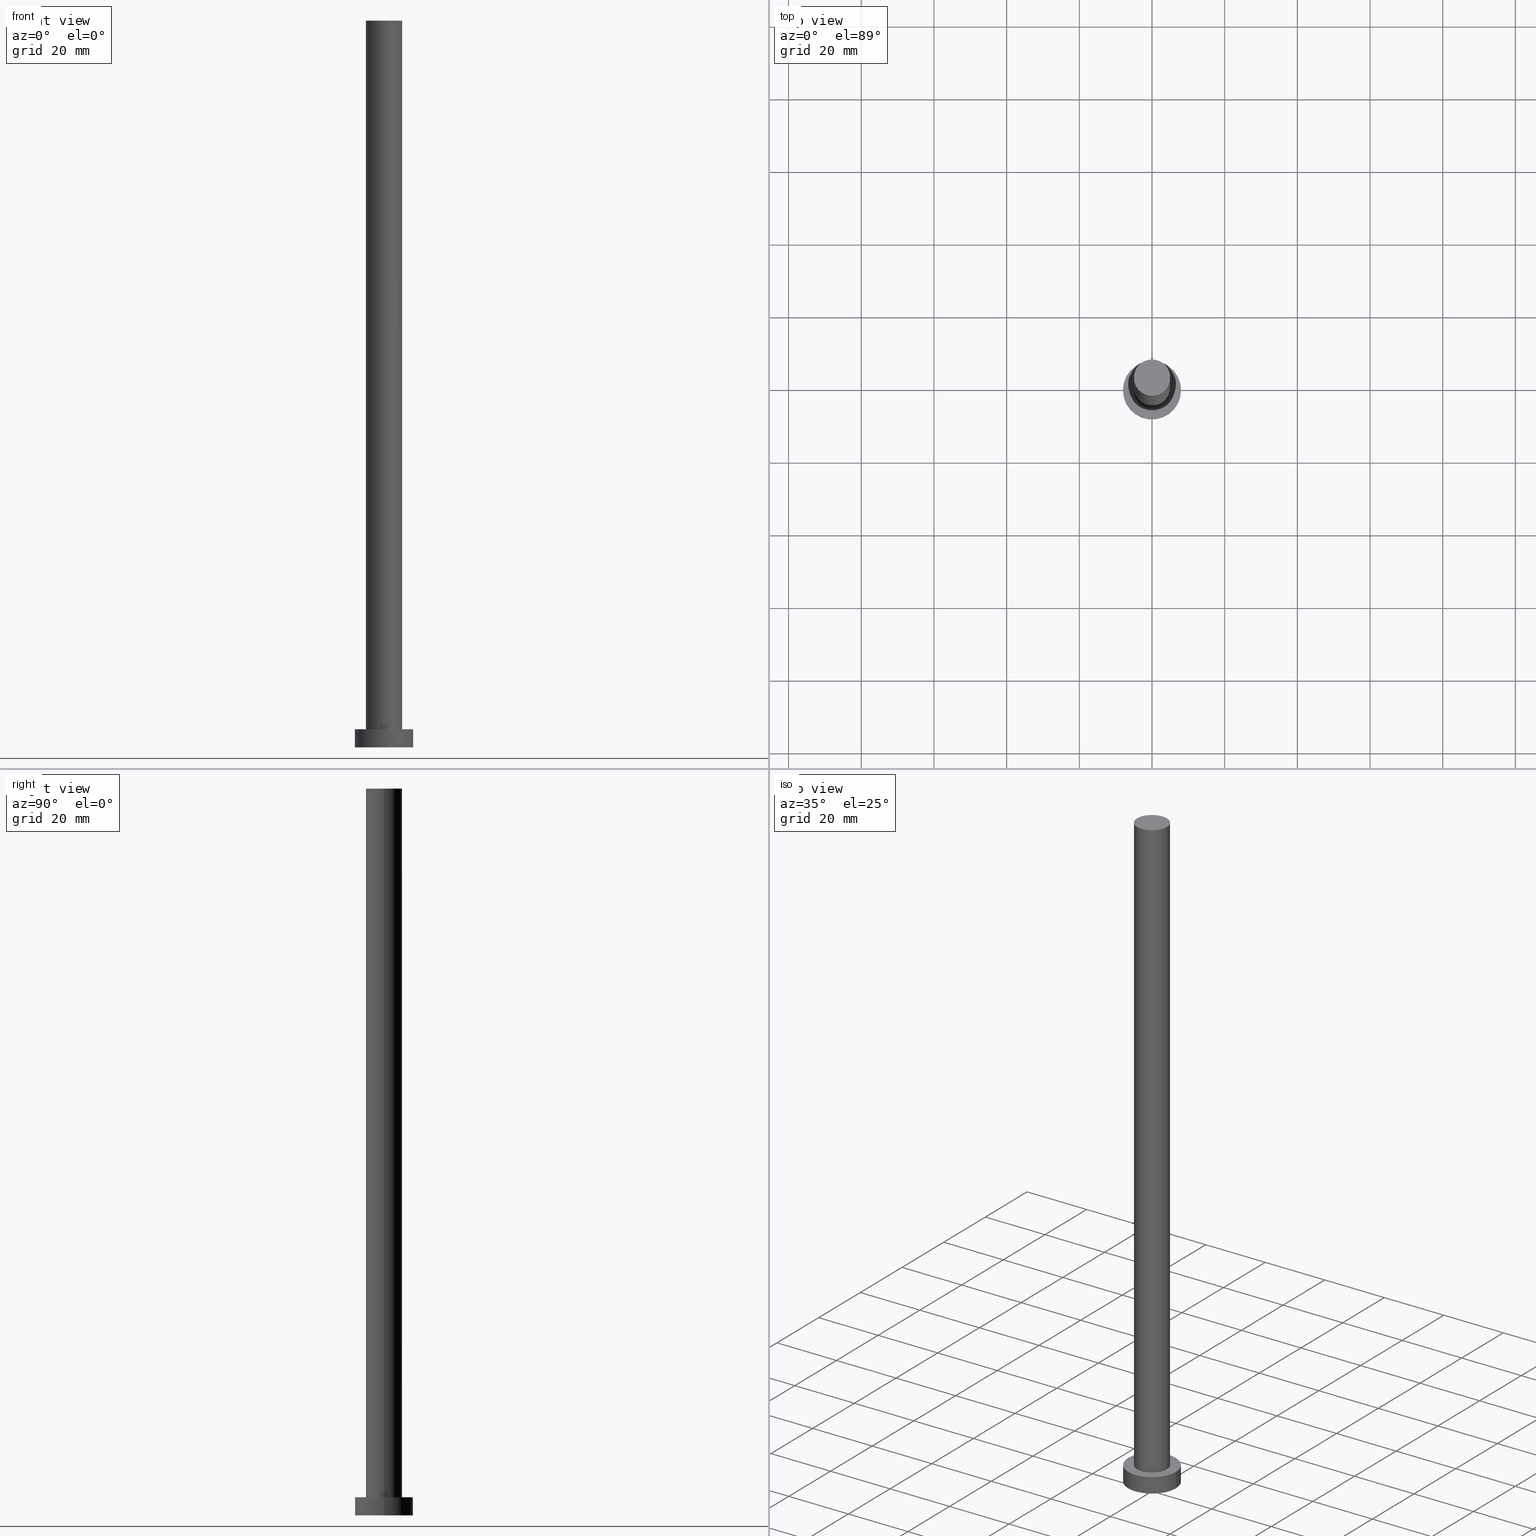
[diagram: canonical four-view strip — front | top / right | iso, engineering-drawing reading convention]
A machine part, canonical four-view strip (front | top / right | iso — engineering-drawing reading convention). The complete STEP part file that produces these views, byte-faithful:
ISO-10303-21;
HEADER;
FILE_DESCRIPTION (( 'STEP AP203' ),
    '1' );
FILE_NAME ('796f.STEP',
    '2023-02-13T09:59:39',
    ( '' ),
    ( '' ),
    'SwSTEP 2.0',
    'SolidWorks 2019',
    '' );
FILE_SCHEMA (( 'CONFIG_CONTROL_DESIGN' ));
ENDSEC;

DATA;
#1 = AXIS2_PLACEMENT_3D ( 'NONE', #19, #166, #184 ) ;
#2 = PLANE ( 'NONE',  #150 ) ;
#3 = AXIS2_PLACEMENT_3D ( 'NONE', #211, #82, #215 ) ;
#4 = CARTESIAN_POINT ( 'NONE',  ( -5.000000000000000888, 0.000000000000000000, 5.000000000000000000 ) ) ;
#5 = CC_DESIGN_DATE_AND_TIME_ASSIGNMENT ( #47, #191, ( #121 ) ) ;
#6 = CARTESIAN_POINT ( 'NONE',  ( 8.000000000000000000, 9.797174393178825657E-16, 5.000000000000000000 ) ) ;
#7 = CARTESIAN_POINT ( 'NONE',  ( 5.000000000000000888, 6.123233995736767268E-16, 200.0000000000000000 ) ) ;
#8 = AXIS2_PLACEMENT_3D ( 'NONE', #188, #28, #247 ) ;
#9 = EDGE_LOOP ( 'NONE', ( #174, #97 ) ) ;
#10 = EDGE_CURVE ( 'NONE', #68, #253, #73, .T. ) ;
#11 = APPROVAL_STATUS ( 'not_yet_approved' ) ;
#12 = APPROVAL_PERSON_ORGANIZATION ( #14, #209, #231 ) ;
#13 = CARTESIAN_POINT ( 'NONE',  ( 8.000000000000000000, 9.797174393178825657E-16, 0.000000000000000000 ) ) ;
#14 = PERSON_AND_ORGANIZATION ( #153, #62 ) ;
#15 = ORIENTED_EDGE ( 'NONE', *, *, #164, .F. ) ;
#16 = ORIENTED_EDGE ( 'NONE', *, *, #239, .F. ) ;
#17 = EDGE_CURVE ( 'NONE', #229, #48, #18, .T. ) ;
#18 = LINE ( 'NONE', #186, #135 ) ;
#19 = CARTESIAN_POINT ( 'NONE',  ( 0.000000000000000000, 0.000000000000000000, 5.000000000000000000 ) ) ;
#20 = AXIS2_PLACEMENT_3D ( 'NONE', #102, #236, #181 ) ;
#21 = CARTESIAN_POINT ( 'NONE',  ( -5.000000000000000888, 0.000000000000000000, 200.0000000000000000 ) ) ;
#22 = PRODUCT_DEFINITION_FORMATION_WITH_SPECIFIED_SOURCE ( 'LIBOVOLN�', '', #130, .NOT_KNOWN. ) ;
#23 = CC_DESIGN_PERSON_AND_ORGANIZATION_ASSIGNMENT ( #245, #205, ( #98 ) ) ;
#24 = DIRECTION ( 'NONE',  ( 0.000000000000000000, 0.000000000000000000, 1.000000000000000000 ) ) ;
#25 = CARTESIAN_POINT ( 'NONE',  ( 0.000000000000000000, 0.000000000000000000, 0.000000000000000000 ) ) ;
#26 = VECTOR ( 'NONE', #210, 1000.000000000000000 ) ;
#27 = MANIFOLD_SOLID_BREP ( 'P�idat vysunut�m3', #242 ) ;
#28 = DIRECTION ( 'NONE',  ( 0.000000000000000000, 0.000000000000000000, 1.000000000000000000 ) ) ;
#29 = CC_DESIGN_PERSON_AND_ORGANIZATION_ASSIGNMENT ( #113, #194, ( #130 ) ) ;
#30 = DIRECTION ( 'NONE',  ( 1.000000000000000000, 0.000000000000000000, 0.000000000000000000 ) ) ;
#31 = CIRCLE ( 'NONE', #69, 8.000000000000000000 ) ;
#32 = CALENDAR_DATE ( 2023, 13, 2 ) ;
#33 = DIRECTION ( 'NONE',  ( 0.000000000000000000, 0.000000000000000000, 1.000000000000000000 ) ) ;
#34 = ORIENTED_EDGE ( 'NONE', *, *, #88, .T. ) ;
#35 = CC_DESIGN_PERSON_AND_ORGANIZATION_ASSIGNMENT ( #227, #156, ( #22 ) ) ;
#36 = DIRECTION ( 'NONE',  ( 0.000000000000000000, 0.000000000000000000, 1.000000000000000000 ) ) ;
#37 = LINE ( 'NONE', #138, #26 ) ;
#38 = DIRECTION ( 'NONE',  ( -0.000000000000000000, -0.000000000000000000, -1.000000000000000000 ) ) ;
#39 = FACE_OUTER_BOUND ( 'NONE', #172, .T. ) ;
#40 = CC_DESIGN_APPROVAL ( #87, ( #22 ) ) ;
#41 = ADVANCED_BREP_SHAPE_REPRESENTATION ( '796f', ( #27, #250 ), #75 ) ;
#42 = CYLINDRICAL_SURFACE ( 'NONE', #3, 8.000000000000000000 ) ;
#43 = CC_DESIGN_DATE_AND_TIME_ASSIGNMENT ( #109, #224, ( #98 ) ) ;
#44 = PERSON_AND_ORGANIZATION ( #153, #62 ) ;
#45 = CC_DESIGN_APPROVAL ( #116, ( #98 ) ) ;
#46 = ORIENTED_EDGE ( 'NONE', *, *, #88, .F. ) ;
#47 = DATE_AND_TIME ( #192, #90 ) ;
#48 = VERTEX_POINT ( 'NONE', #104 ) ;
#49 =( NAMED_UNIT ( * ) PLANE_ANGLE_UNIT ( ) SI_UNIT ( $, .RADIAN. ) );
#50 = CALENDAR_DATE ( 2023, 13, 2 ) ;
#51 = VERTEX_POINT ( 'NONE', #21 ) ;
#52 = CALENDAR_DATE ( 2023, 13, 2 ) ;
#53 = APPLICATION_CONTEXT ( 'configuration controlled 3d designs of mechanical parts and assemblies' ) ;
#54 = EDGE_LOOP ( 'NONE', ( #16, #160, #144, #15 ) ) ;
#55 = COORDINATED_UNIVERSAL_TIME_OFFSET ( 1, 0, .AHEAD. ) ;
#56 = APPLICATION_PROTOCOL_DEFINITION ( 'international standard', 'config_control_design', 1994, #53 ) ;
#57 = EDGE_CURVE ( 'NONE', #51, #70, #117, .T. ) ;
#58 = ORIENTED_EDGE ( 'NONE', *, *, #57, .F. ) ;
#59 = LOCAL_TIME ( 10, 59, 39.00000000000000000, #177 ) ;
#60 = CARTESIAN_POINT ( 'NONE',  ( 0.000000000000000000, 0.000000000000000000, 5.000000000000000000 ) ) ;
#61 = DIRECTION ( 'NONE',  ( -0.000000000000000000, -0.000000000000000000, -1.000000000000000000 ) ) ;
#62 = ORGANIZATION ( 'NEUR�EN�', 'NEUR�EN�', '' ) ;
#63 = FACE_OUTER_BOUND ( 'NONE', #54, .T. ) ;
#64 = FACE_OUTER_BOUND ( 'NONE', #223, .T. ) ;
#65 = FACE_BOUND ( 'NONE', #221, .T. ) ;
#66 = EDGE_CURVE ( 'NONE', #229, #51, #237, .T. ) ;
#67 = CARTESIAN_POINT ( 'NONE',  ( 0.000000000000000000, 0.000000000000000000, 5.000000000000000000 ) ) ;
#68 = VERTEX_POINT ( 'NONE', #137 ) ;
#69 = AXIS2_PLACEMENT_3D ( 'NONE', #25, #36, #198 ) ;
#70 = VERTEX_POINT ( 'NONE', #4 ) ;
#71 = CIRCLE ( 'NONE', #114, 5.000000000000000888 ) ;
#72 = ORIENTED_EDGE ( 'NONE', *, *, #213, .T. ) ;
#73 = CIRCLE ( 'NONE', #105, 8.000000000000000000 ) ;
#74 = APPROVAL_ROLE ( '' ) ;
#75 =( GEOMETRIC_REPRESENTATION_CONTEXT ( 3 ) GLOBAL_UNCERTAINTY_ASSIGNED_CONTEXT ( ( #212 ) ) GLOBAL_UNIT_ASSIGNED_CONTEXT ( ( #244, #49, #78 ) ) REPRESENTATION_CONTEXT ( 'NONE', 'WORKASPACE' ) );
#76 = COORDINATED_UNIVERSAL_TIME_OFFSET ( 1, 0, .AHEAD. ) ;
#77 = DIRECTION ( 'NONE',  ( 0.000000000000000000, 0.000000000000000000, 1.000000000000000000 ) ) ;
#78 =( NAMED_UNIT ( * ) SI_UNIT ( $, .STERADIAN. ) SOLID_ANGLE_UNIT ( ) );
#79 = VERTEX_POINT ( 'NONE', #119 ) ;
#80 = ORIENTED_EDGE ( 'NONE', *, *, #125, .F. ) ;
#81 = CARTESIAN_POINT ( 'NONE',  ( 0.000000000000000000, 0.000000000000000000, 200.0000000000000000 ) ) ;
#82 = DIRECTION ( 'NONE',  ( -0.000000000000000000, -0.000000000000000000, -1.000000000000000000 ) ) ;
#83 = AXIS2_PLACEMENT_3D ( 'NONE', #81, #100, #197 ) ;
#84 = CARTESIAN_POINT ( 'NONE',  ( 0.000000000000000000, 0.000000000000000000, 0.000000000000000000 ) ) ;
#85 = DIRECTION ( 'NONE',  ( 0.000000000000000000, 0.000000000000000000, 1.000000000000000000 ) ) ;
#86 = CARTESIAN_POINT ( 'NONE',  ( 0.000000000000000000, 0.000000000000000000, 5.000000000000000000 ) ) ;
#87 = APPROVAL ( #11, 'NEUR�EN�' ) ;
#88 = EDGE_CURVE ( 'NONE', #51, #229, #193, .T. ) ;
#89 = EDGE_LOOP ( 'NONE', ( #189, #46, #233, #72 ) ) ;
#90 = LOCAL_TIME ( 10, 59, 39.00000000000000000, #127 ) ;
#91 = PERSON_AND_ORGANIZATION ( #153, #62 ) ;
#92 = VECTOR ( 'NONE', #61, 1000.000000000000000 ) ;
#93 = CALENDAR_DATE ( 2023, 13, 2 ) ;
#94 = ORIENTED_EDGE ( 'NONE', *, *, #10, .F. ) ;
#95 = PERSON_AND_ORGANIZATION ( #153, #62 ) ;
#96 = DIRECTION ( 'NONE',  ( 1.000000000000000000, 0.000000000000000000, 0.000000000000000000 ) ) ;
#97 = ORIENTED_EDGE ( 'NONE', *, *, #239, .T. ) ;
#98 = PRODUCT_DEFINITION ( 'NEZN�M�', '', #22, #139 ) ;
#99 = EDGE_LOOP ( 'NONE', ( #34, #124 ) ) ;
#100 = DIRECTION ( 'NONE',  ( 0.000000000000000000, 0.000000000000000000, 1.000000000000000000 ) ) ;
#101 = LINE ( 'NONE', #238, #216 ) ;
#102 = CARTESIAN_POINT ( 'NONE',  ( 0.000000000000000000, 0.000000000000000000, 200.0000000000000000 ) ) ;
#103 = DIRECTION ( 'NONE',  ( -0.000000000000000000, -0.000000000000000000, -1.000000000000000000 ) ) ;
#104 = CARTESIAN_POINT ( 'NONE',  ( 5.000000000000000888, 6.123233995736767268E-16, 5.000000000000000000 ) ) ;
#105 = AXIS2_PLACEMENT_3D ( 'NONE', #131, #33, #96 ) ;
#106 = CC_DESIGN_APPROVAL ( #209, ( #121 ) ) ;
#107 = DIRECTION ( 'NONE',  ( -1.000000000000000000, 0.000000000000000000, 0.000000000000000000 ) ) ;
#108 = APPROVAL_PERSON_ORGANIZATION ( #44, #116, #175 ) ;
#109 = DATE_AND_TIME ( #93, #222 ) ;
#110 = DIRECTION ( 'NONE',  ( 1.000000000000000000, 0.000000000000000000, 0.000000000000000000 ) ) ;
#111 = APPROVAL_DATE_TIME ( #251, #87 ) ;
#112 = EDGE_CURVE ( 'NONE', #79, #168, #220, .T. ) ;
#113 = PERSON_AND_ORGANIZATION ( #153, #62 ) ;
#114 = AXIS2_PLACEMENT_3D ( 'NONE', #67, #143, #110 ) ;
#115 = APPROVAL_DATE_TIME ( #129, #209 ) ;
#116 = APPROVAL ( #206, 'NEUR�EN�' ) ;
#117 = LINE ( 'NONE', #196, #92 ) ;
#118 = ADVANCED_FACE ( 'NONE', ( #162 ), #243, .T. ) ;
#119 = CARTESIAN_POINT ( 'NONE',  ( -8.000000000000000000, 0.000000000000000000, 5.000000000000000000 ) ) ;
#120 = CARTESIAN_POINT ( 'NONE',  ( 0.000000000000000000, 0.000000000000000000, 200.0000000000000000 ) ) ;
#121 = SECURITY_CLASSIFICATION ( '', '', #249 ) ;
#122 = DIRECTION ( 'NONE',  ( -1.000000000000000000, 0.000000000000000000, 0.000000000000000000 ) ) ;
#123 = AXIS2_PLACEMENT_3D ( 'NONE', #140, #24, #200 ) ;
#124 = ORIENTED_EDGE ( 'NONE', *, *, #66, .T. ) ;
#125 = EDGE_CURVE ( 'NONE', #253, #68, #31, .T. ) ;
#126 = PERSON_AND_ORGANIZATION_ROLE ( 'creator' ) ;
#127 = COORDINATED_UNIVERSAL_TIME_OFFSET ( 1, 0, .AHEAD. ) ;
#128 = ADVANCED_FACE ( 'NONE', ( #39 ), #199, .T. ) ;
#129 = DATE_AND_TIME ( #52, #159 ) ;
#130 = PRODUCT ( '796f', '796f', '', ( #232 ) ) ;
#131 = CARTESIAN_POINT ( 'NONE',  ( 0.000000000000000000, 0.000000000000000000, 0.000000000000000000 ) ) ;
#132 = AXIS2_PLACEMENT_3D ( 'NONE', #60, #85, #136 ) ;
#133 = COORDINATED_UNIVERSAL_TIME_OFFSET ( 1, 0, .AHEAD. ) ;
#134 = CARTESIAN_POINT ( 'NONE',  ( 0.000000000000000000, 0.000000000000000000, 0.000000000000000000 ) ) ;
#135 = VECTOR ( 'NONE', #38, 1000.000000000000000 ) ;
#136 = DIRECTION ( 'NONE',  ( 1.000000000000000000, 0.000000000000000000, -0.000000000000000000 ) ) ;
#137 = CARTESIAN_POINT ( 'NONE',  ( -8.000000000000000000, 0.000000000000000000, 0.000000000000000000 ) ) ;
#138 = CARTESIAN_POINT ( 'NONE',  ( -8.000000000000000000, 0.000000000000000000, 5.000000000000000000 ) ) ;
#139 = DESIGN_CONTEXT ( 'detailed design', #53, 'design' ) ;
#140 = CARTESIAN_POINT ( 'NONE',  ( 0.000000000000000000, 0.000000000000000000, 200.0000000000000000 ) ) ;
#141 = ADVANCED_FACE ( 'NONE', ( #65, #240 ), #255, .T. ) ;
#142 = CARTESIAN_POINT ( 'NONE',  ( 0.000000000000000000, 0.000000000000000000, 5.000000000000000000 ) ) ;
#143 = DIRECTION ( 'NONE',  ( 0.000000000000000000, 0.000000000000000000, 1.000000000000000000 ) ) ;
#144 = ORIENTED_EDGE ( 'NONE', *, *, #125, .T. ) ;
#145 = AXIS2_PLACEMENT_3D ( 'NONE', #120, #217, #161 ) ;
#146 = ADVANCED_FACE ( 'NONE', ( #63 ), #165, .T. ) ;
#147 = CYLINDRICAL_SURFACE ( 'NONE', #228, 5.000000000000000888 ) ;
#148 = PERSON_AND_ORGANIZATION ( #153, #62 ) ;
#149 = ORIENTED_EDGE ( 'NONE', *, *, #183, .F. ) ;
#150 = AXIS2_PLACEMENT_3D ( 'NONE', #84, #163, #185 ) ;
#151 = DATE_AND_TIME ( #50, #203 ) ;
#152 = DIRECTION ( 'NONE',  ( 1.000000000000000000, 0.000000000000000000, 0.000000000000000000 ) ) ;
#153 = PERSON ( 'NEUR�EN�', 'NEUR�EN�', 'NEUR�EN�', ('NEUR�EN�'), ('NEUR�EN�'), ('NEUR�EN�') ) ;
#154 = ORIENTED_EDGE ( 'NONE', *, *, #183, .T. ) ;
#155 = ADVANCED_FACE ( 'NONE', ( #64 ), #42, .T. ) ;
#156 = PERSON_AND_ORGANIZATION_ROLE ( 'design_supplier' ) ;
#157 = APPLICATION_PROTOCOL_DEFINITION ( 'international standard', 'config_control_design', 1994, #254 ) ;
#158 = EDGE_LOOP ( 'NONE', ( #94, #80 ) ) ;
#159 = LOCAL_TIME ( 10, 59, 39.00000000000000000, #133 ) ;
#160 = ORIENTED_EDGE ( 'NONE', *, *, #178, .T. ) ;
#161 = DIRECTION ( 'NONE',  ( 1.000000000000000000, 0.000000000000000000, -0.000000000000000000 ) ) ;
#162 = FACE_OUTER_BOUND ( 'NONE', #99, .T. ) ;
#163 = DIRECTION ( 'NONE',  ( 0.000000000000000000, 0.000000000000000000, 1.000000000000000000 ) ) ;
#164 = EDGE_CURVE ( 'NONE', #79, #68, #37, .T. ) ;
#165 = CYLINDRICAL_SURFACE ( 'NONE', #187, 8.000000000000000000 ) ;
#166 = DIRECTION ( 'NONE',  ( 0.000000000000000000, 0.000000000000000000, 1.000000000000000000 ) ) ;
#167 = AXIS2_PLACEMENT_3D ( 'NONE', #86, #214, #30 ) ;
#168 = VERTEX_POINT ( 'NONE', #6 ) ;
#169 = APPROVAL_PERSON_ORGANIZATION ( #95, #87, #74 ) ;
#170 = PERSON_AND_ORGANIZATION_ROLE ( 'classification_officer' ) ;
#171 = PRODUCT_RELATED_PRODUCT_CATEGORY ( 'detail', '', ( #130 ) ) ;
#172 = EDGE_LOOP ( 'NONE', ( #225, #252, #154, #58 ) ) ;
#173 = APPROVAL_DATE_TIME ( #151, #116 ) ;
#174 = ORIENTED_EDGE ( 'NONE', *, *, #112, .T. ) ;
#175 = APPROVAL_ROLE ( '' ) ;
#176 = ORIENTED_EDGE ( 'NONE', *, *, #10, .T. ) ;
#177 = COORDINATED_UNIVERSAL_TIME_OFFSET ( 1, 0, .AHEAD. ) ;
#178 = EDGE_CURVE ( 'NONE', #168, #253, #101, .T. ) ;
#179 = CIRCLE ( 'NONE', #8, 8.000000000000000000 ) ;
#180 = ADVANCED_FACE ( 'NONE', ( #182 ), #2, .F. ) ;
#181 = DIRECTION ( 'NONE',  ( -1.000000000000000000, 0.000000000000000000, 0.000000000000000000 ) ) ;
#182 = FACE_OUTER_BOUND ( 'NONE', #158, .T. ) ;
#183 = EDGE_CURVE ( 'NONE', #48, #70, #195, .T. ) ;
#184 = DIRECTION ( 'NONE',  ( 1.000000000000000000, 0.000000000000000000, 0.000000000000000000 ) ) ;
#185 = DIRECTION ( 'NONE',  ( 1.000000000000000000, 0.000000000000000000, -0.000000000000000000 ) ) ;
#186 = CARTESIAN_POINT ( 'NONE',  ( 5.000000000000000888, 6.123233995736767268E-16, 200.0000000000000000 ) ) ;
#187 = AXIS2_PLACEMENT_3D ( 'NONE', #142, #241, #122 ) ;
#188 = CARTESIAN_POINT ( 'NONE',  ( 0.000000000000000000, 0.000000000000000000, 5.000000000000000000 ) ) ;
#189 = ORIENTED_EDGE ( 'NONE', *, *, #17, .F. ) ;
#190 = ORIENTED_EDGE ( 'NONE', *, *, #164, .T. ) ;
#191 = DATE_TIME_ROLE ( 'classification_date' ) ;
#192 = CALENDAR_DATE ( 2023, 13, 2 ) ;
#193 = CIRCLE ( 'NONE', #83, 5.000000000000000888 ) ;
#194 = PERSON_AND_ORGANIZATION_ROLE ( 'design_owner' ) ;
#195 = CIRCLE ( 'NONE', #167, 5.000000000000000888 ) ;
#196 = CARTESIAN_POINT ( 'NONE',  ( -5.000000000000000888, 0.000000000000000000, 200.0000000000000000 ) ) ;
#197 = DIRECTION ( 'NONE',  ( 1.000000000000000000, 0.000000000000000000, 0.000000000000000000 ) ) ;
#198 = DIRECTION ( 'NONE',  ( 1.000000000000000000, 0.000000000000000000, 0.000000000000000000 ) ) ;
#199 = CYLINDRICAL_SURFACE ( 'NONE', #20, 5.000000000000000888 ) ;
#200 = DIRECTION ( 'NONE',  ( 1.000000000000000000, 0.000000000000000000, 0.000000000000000000 ) ) ;
#201 = ORIENTED_EDGE ( 'NONE', *, *, #112, .F. ) ;
#202 = CC_DESIGN_SECURITY_CLASSIFICATION ( #121, ( #22 ) ) ;
#203 = LOCAL_TIME ( 10, 59, 39.00000000000000000, #76 ) ;
#204 = DIRECTION ( 'NONE',  ( -0.000000000000000000, -0.000000000000000000, -1.000000000000000000 ) ) ;
#205 = PERSON_AND_ORGANIZATION_ROLE ( 'creator' ) ;
#206 = APPROVAL_STATUS ( 'not_yet_approved' ) ;
#207 = CC_DESIGN_PERSON_AND_ORGANIZATION_ASSIGNMENT ( #148, #126, ( #22 ) ) ;
#208 = SHAPE_DEFINITION_REPRESENTATION ( #218, #41 ) ;
#209 = APPROVAL ( #246, 'NEUR�EN�' ) ;
#210 = DIRECTION ( 'NONE',  ( -0.000000000000000000, -0.000000000000000000, -1.000000000000000000 ) ) ;
#211 = CARTESIAN_POINT ( 'NONE',  ( 0.000000000000000000, 0.000000000000000000, 5.000000000000000000 ) ) ;
#212 = UNCERTAINTY_MEASURE_WITH_UNIT (LENGTH_MEASURE( 1.000000000000000082E-05 ), #244, 'distance_accuracy_value', 'NONE');
#213 = EDGE_CURVE ( 'NONE', #70, #48, #71, .T. ) ;
#214 = DIRECTION ( 'NONE',  ( 0.000000000000000000, 0.000000000000000000, 1.000000000000000000 ) ) ;
#215 = DIRECTION ( 'NONE',  ( -1.000000000000000000, 0.000000000000000000, 0.000000000000000000 ) ) ;
#216 = VECTOR ( 'NONE', #103, 1000.000000000000000 ) ;
#217 = DIRECTION ( 'NONE',  ( 0.000000000000000000, 0.000000000000000000, 1.000000000000000000 ) ) ;
#218 = PRODUCT_DEFINITION_SHAPE ( 'NONE', 'NONE',  #98 ) ;
#219 = FACE_OUTER_BOUND ( 'NONE', #89, .T. ) ;
#220 = CIRCLE ( 'NONE', #1, 8.000000000000000000 ) ;
#221 = EDGE_LOOP ( 'NONE', ( #234, #149 ) ) ;
#222 = LOCAL_TIME ( 10, 59, 39.00000000000000000, #55 ) ;
#223 = EDGE_LOOP ( 'NONE', ( #248, #201, #190, #176 ) ) ;
#224 = DATE_TIME_ROLE ( 'creation_date' ) ;
#225 = ORIENTED_EDGE ( 'NONE', *, *, #66, .F. ) ;
#226 = CARTESIAN_POINT ( 'NONE',  ( 0.000000000000000000, 0.000000000000000000, 200.0000000000000000 ) ) ;
#227 = PERSON_AND_ORGANIZATION ( #153, #62 ) ;
#228 = AXIS2_PLACEMENT_3D ( 'NONE', #226, #204, #107 ) ;
#229 = VERTEX_POINT ( 'NONE', #7 ) ;
#230 = ADVANCED_FACE ( 'NONE', ( #219 ), #147, .T. ) ;
#231 = APPROVAL_ROLE ( '' ) ;
#232 = MECHANICAL_CONTEXT ( 'NONE', #254, 'mechanical' ) ;
#233 = ORIENTED_EDGE ( 'NONE', *, *, #57, .T. ) ;
#234 = ORIENTED_EDGE ( 'NONE', *, *, #213, .F. ) ;
#235 = CC_DESIGN_PERSON_AND_ORGANIZATION_ASSIGNMENT ( #91, #170, ( #121 ) ) ;
#236 = DIRECTION ( 'NONE',  ( -0.000000000000000000, -0.000000000000000000, -1.000000000000000000 ) ) ;
#237 = CIRCLE ( 'NONE', #123, 5.000000000000000888 ) ;
#238 = CARTESIAN_POINT ( 'NONE',  ( 8.000000000000000000, 9.797174393178825657E-16, 5.000000000000000000 ) ) ;
#239 = EDGE_CURVE ( 'NONE', #168, #79, #179, .T. ) ;
#240 = FACE_OUTER_BOUND ( 'NONE', #9, .T. ) ;
#241 = DIRECTION ( 'NONE',  ( -0.000000000000000000, -0.000000000000000000, -1.000000000000000000 ) ) ;
#242 = CLOSED_SHELL ( 'NONE', ( #128, #146, #155, #141, #180, #230, #118 ) ) ;
#243 = PLANE ( 'NONE',  #145 ) ;
#244 =( LENGTH_UNIT ( ) NAMED_UNIT ( * ) SI_UNIT ( .MILLI., .METRE. ) );
#245 = PERSON_AND_ORGANIZATION ( #153, #62 ) ;
#246 = APPROVAL_STATUS ( 'not_yet_approved' ) ;
#247 = DIRECTION ( 'NONE',  ( 1.000000000000000000, 0.000000000000000000, 0.000000000000000000 ) ) ;
#248 = ORIENTED_EDGE ( 'NONE', *, *, #178, .F. ) ;
#249 = SECURITY_CLASSIFICATION_LEVEL ( 'unclassified' ) ;
#250 = AXIS2_PLACEMENT_3D ( 'NONE', #134, #77, #152 ) ;
#251 = DATE_AND_TIME ( #32, #59 ) ;
#252 = ORIENTED_EDGE ( 'NONE', *, *, #17, .T. ) ;
#253 = VERTEX_POINT ( 'NONE', #13 ) ;
#254 = APPLICATION_CONTEXT ( 'configuration controlled 3d designs of mechanical parts and assemblies' ) ;
#255 = PLANE ( 'NONE',  #132 ) ;
ENDSEC;
END-ISO-10303-21;
